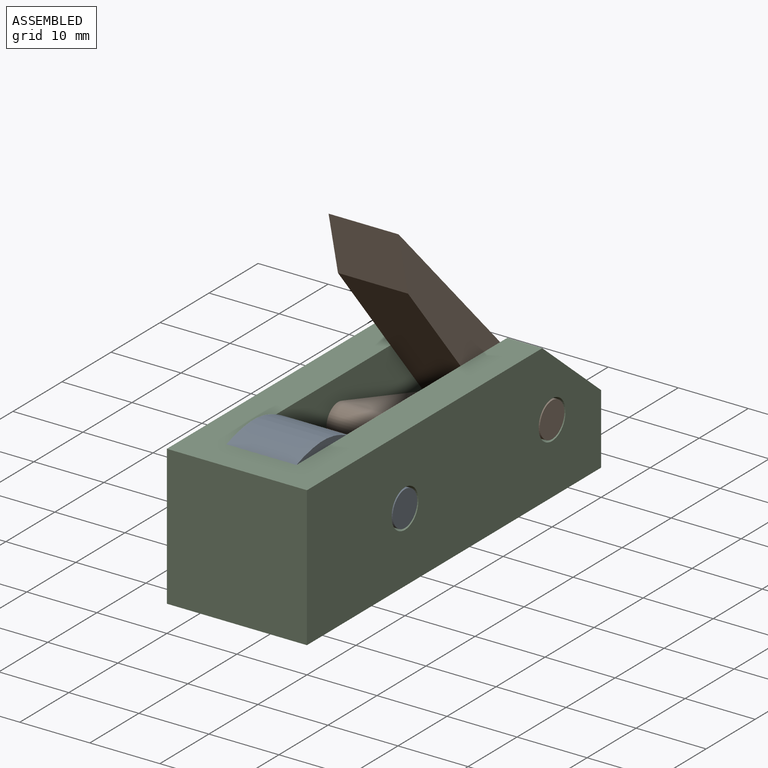
[diagram: assembled view]
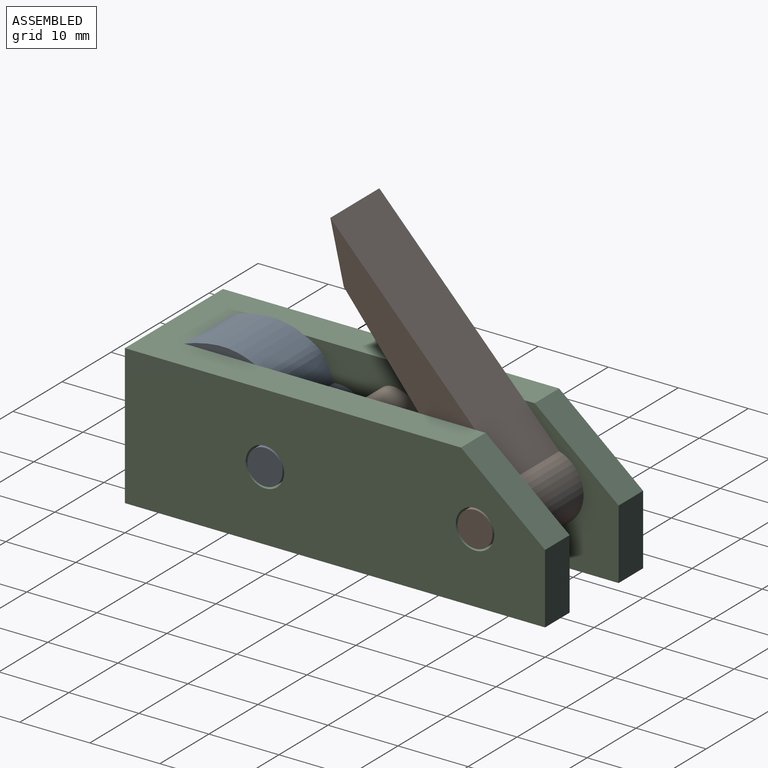
[diagram: assembled view, second angle]
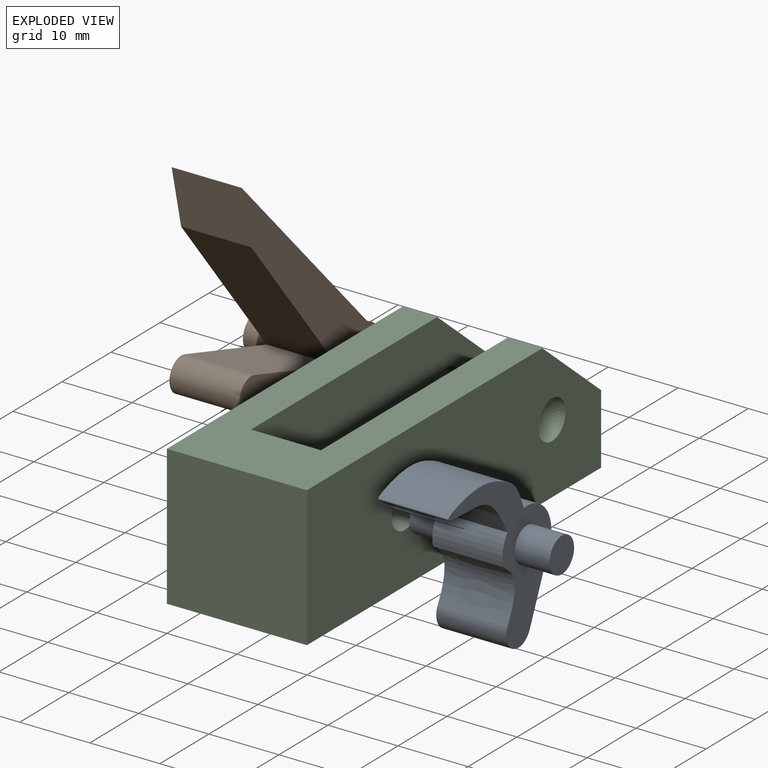
[diagram: exploded view]
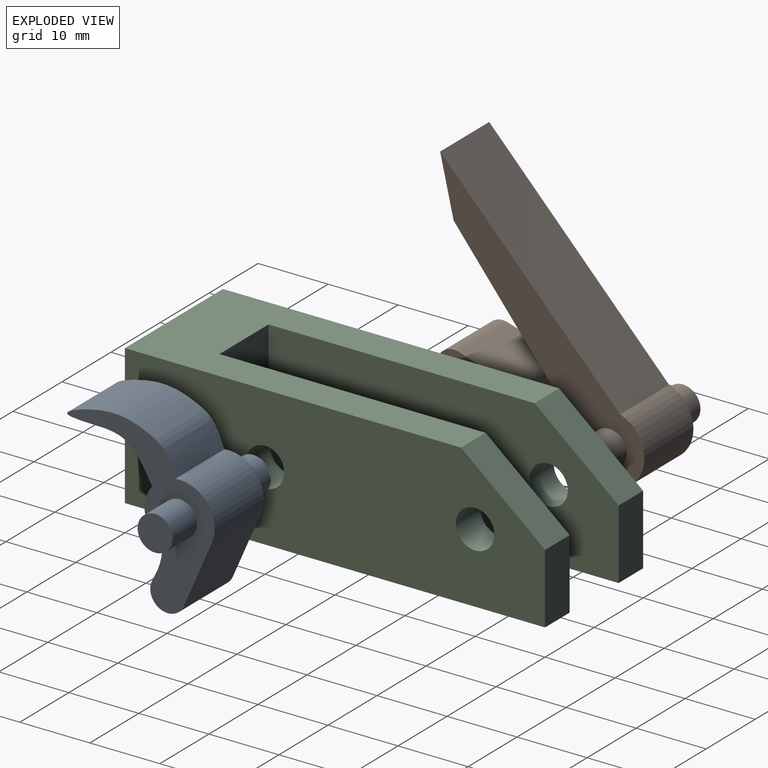
[diagram: exploded view, second angle]
ASSEMBLY  parts=3 mates=2
PART A: 13 faces, bbox 20x19.8x23.8 mm
  f0: cylinder r=2.5mm len=5mm, axis (-1,0,0), area 78.5mm2, adj f1,f9
  f1: plane 5x5mm, normal (1,0,0), area 19.6mm2, adj f0
  f2: extruded ~15.9x10mm, area 335.8mm2, adj f3,f8,f9,f10
  f3: cylinder r=5mm len=10mm, axis (-1,0,0), area 43.4mm2, adj f2,f4,f9,f10
  f4: extruded ~10x3.51mm, area 42.6mm2, adj f3,f5,f9,f10
  f5: extruded ~10x4.66mm, area 47.5mm2, adj f4,f6,f9,f10
  f6: cylinder r=2.5mm len=10mm, axis (-1,0,0), area 82.3mm2, adj f5,f7,f9,f10
  f7: plane 10x10mm, normal (0,0,1), area 100mm2, adj f6,f8,f9,f10
  f8: cylinder r=5mm len=10mm, axis (-1,0,0), area 105.3mm2, adj f2,f7,f9,f10
  f9: plane 23.76x19.8mm, normal (1,0,0), area 140.9mm2, adj f0,f2,f3,f4,f5,f6,f7,f8
  f10: plane 23.76x19.8mm, normal (-1,0,0), area 140.9mm2, adj f2,f3,f4,f5,f6,f7,f8,f12
  f11: plane 5x5mm, normal (-1,0,0), area 19.6mm2, adj f12
  f12: cylinder r=2.5mm len=5mm, axis (-1,0,0), area 78.5mm2, adj f10,f11
PART B: 13 faces, bbox 20x37.7x28 mm
  f0: cylinder r=2.4mm len=10mm, axis (-1,0,0), area 75.4mm2, adj f1,f6,f7,f8
  f1: plane 22.5x10mm, normal (0,0,-1), area 225mm2, adj f0,f2,f7,f8
  f2: cylinder r=5mm len=10mm, axis (-1,0,0), area 157.1mm2, adj f1,f3,f7,f8
  f3: plane 32.7x17.95mm, normal (0,0.48,0.88), area 373.1mm2, adj f2,f4,f7,f8
  f4: plane 10x7.41mm, normal (0,-0.86,-0.51), area 86.1mm2, adj f3,f5,f7,f8
  f5: plane 23.32x15.55mm, normal (0,-0.55,-0.83), area 280.3mm2, adj f4,f6,f7,f8
  f6: plane 17.5x10mm, normal (0,-0.01,1), area 175mm2, adj f0,f5,f7,f8
  f7: plane 37.7x27.95mm, normal (1,0,0), area 330.9mm2, adj f0,f1,f2,f3,f4,f5,f6,f11
  f8: plane 37.7x27.95mm, normal (-1,0,0), area 330.9mm2, adj f0,f1,f2,f3,f4,f5,f6,f10
  f9: plane 5x5mm, normal (-1,0,0), area 19.6mm2, adj f10
  f10: cylinder r=2.5mm len=5mm, axis (-1,0,0), area 78.5mm2, adj f8,f9
  f11: cylinder r=2.5mm len=5mm, axis (-1,0,0), area 78.5mm2, adj f7,f12
  f12: plane 5x5mm, normal (1,0,0), area 19.6mm2, adj f11
PART C: 16 faces, bbox 20x60x20 mm
  f0: plane 10x5mm, normal (0,1,0), area 50mm2, adj f1,f10,f12,f15
  f1: plane 60x20mm, normal (0,0,-1), area 700mm2, adj f0,f4,f7,f9,f10,f11,f12,f13
  f2: cylinder r=2.75mm len=5.5mm, axis (-1,0,0), area 86.4mm2, adj f9,f11
  f3: cylinder r=2.75mm len=5.5mm, axis (-1,0,0), area 86.4mm2, adj f9,f11
  f4: plane 10x5mm, normal (0,1,0), area 50mm2, adj f1,f9,f11,f14
  f5: plane 48x20mm, normal (0,0,1), area 580mm2, adj f7,f9,f10,f11,f12,f13,f14,f15
  f6: cylinder r=2.75mm len=5.5mm, axis (-1,0,0), area 86.4mm2, adj f10,f12
  f7: plane 20x20mm, normal (0,-1,0), area 400mm2, adj f1,f5,f9,f10
  f8: cylinder r=2.75mm len=5.5mm, axis (-1,0,0), area 86.4mm2, adj f10,f12
  f9: plane 60x20mm, normal (1,0,0), area 1092.5mm2, adj f1,f2,f3,f4,f5,f7,f14
  f10: plane 60x20mm, normal (-1,0,0), area 1092.5mm2, adj f0,f1,f5,f6,f7,f8,f15
  f11: plane 50x20mm, normal (-1,0,0), area 892.5mm2, adj f1,f2,f3,f4,f5,f13,f14
  f12: plane 50x20mm, normal (1,0,0), area 892.5mm2, adj f0,f1,f5,f6,f8,f13,f15
  f13: plane 20x10mm, normal (0,1,0), area 200mm2, adj f1,f5,f11,f12
  f14: plane 12x10mm, normal (0,0.64,0.77), area 78.1mm2, adj f4,f5,f9,f11
  f15: plane 12x10mm, normal (0,0.64,0.77), area 78.1mm2, adj f0,f5,f10,f12
PLACE A rot(axis=(-1,0,0),113.5deg) t=(0,0,0)mm
PLACE B rot(axis=(-1,0,0),17.7deg) t=(0,1.42,9.13)mm
PLACE C at identity fixed
MATE revolute B.f10 <-> C.f2  axis (-1,0,0) through (-10,30,0)mm
MATE revolute C.f3 <-> A.f0  axis (-1,0,0) through (-10,0,0)mm
